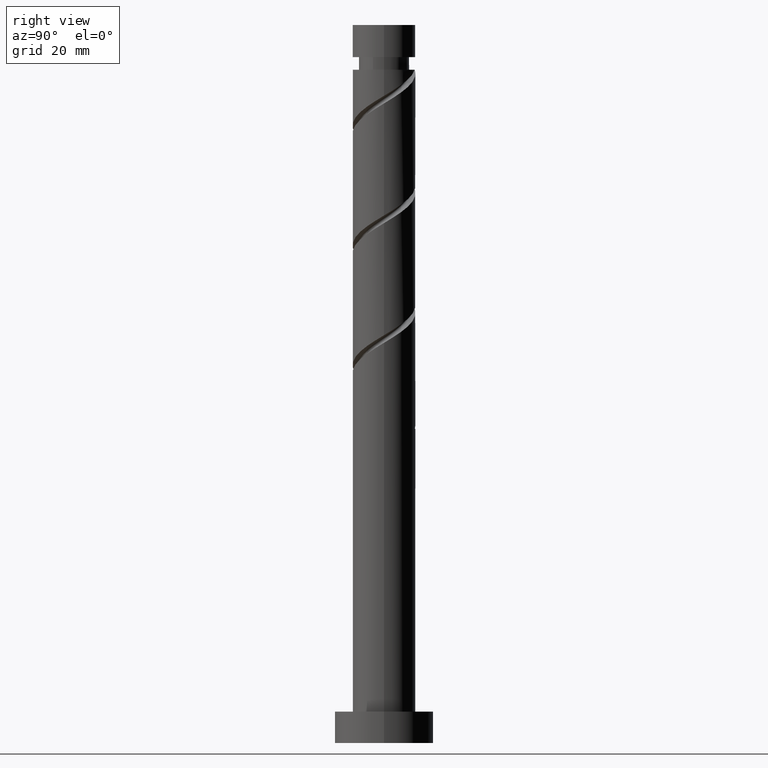
[diagram: clean part render]
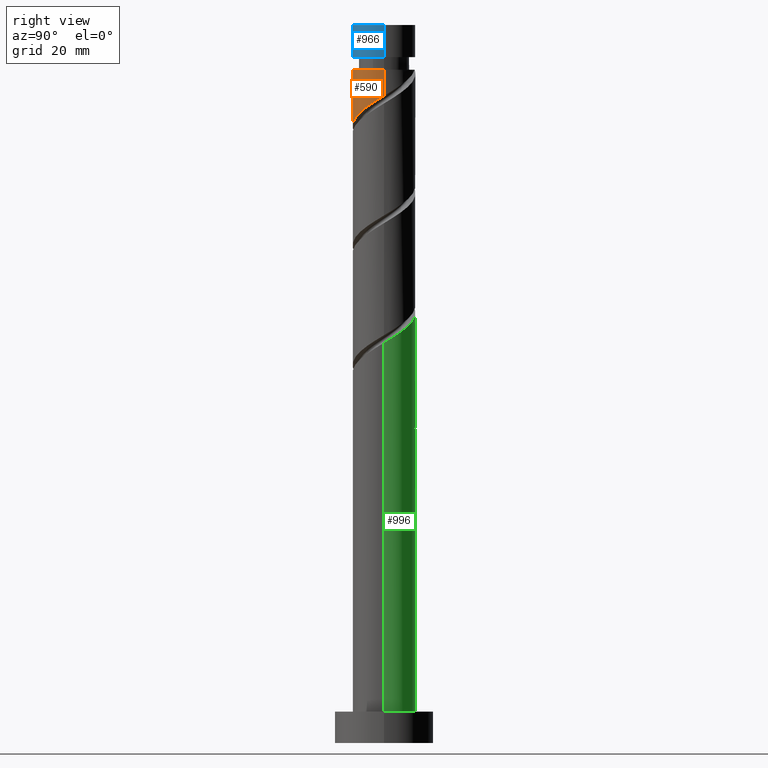
[diagram: same view with three faces highlighted in distinct colors, each labeled with its STEP entity id]
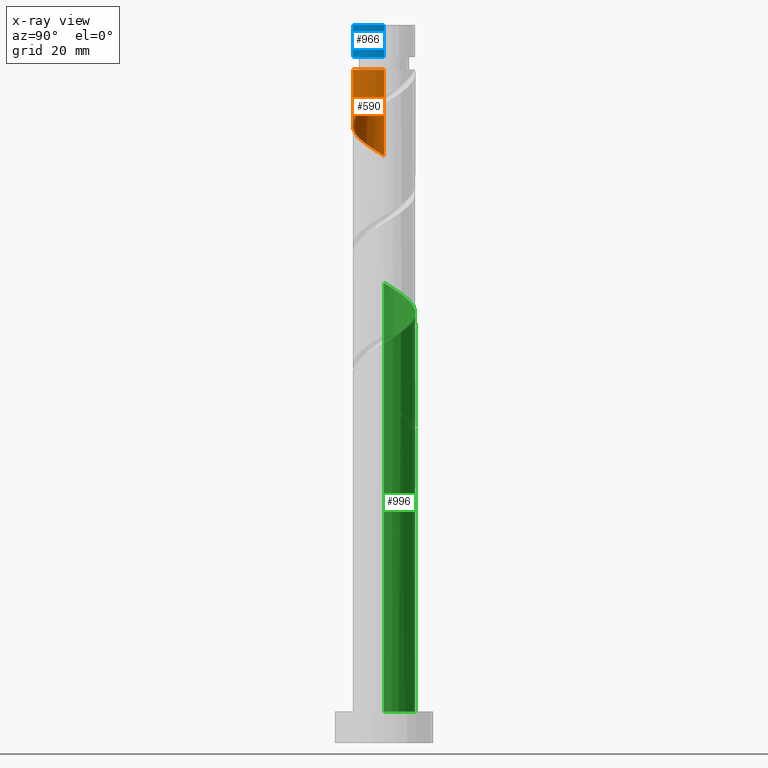
[diagram: x-ray of the same camera — body ghosted, the three highlighted faces saturated]
A machine part, right view with three faces highlighted in distinct colors.
The next image is the same camera in x-ray (body ghosted, the three faces saturated) — at least one of them is partly hidden behind the body in this view.
Their STEP definitions:

[orange] entity #590 — the highlighted cylindrical surface (edge-blend (fillet) strip) has radius 7 mm, axis along (-0, -0, -1).
#35 = CARTESIAN_POINT ( 'NONE',  ( -7.000000000000000000, -0.8017024916958609415, 131.3653860772203927 ) ) ;
#93 = EDGE_LOOP ( 'NONE', ( #125, #531, #216, #501 ) ) ;
#125 = ORIENTED_EDGE ( 'NONE', *, *, #1533, .F. ) ;
#138 = CARTESIAN_POINT ( 'NONE',  ( 5.069496247514097220, -4.930836185660769644, 140.9390625540390829 ) ) ;
#147 = VERTEX_POINT ( 'NONE', #1429 ) ;
#149 = CARTESIAN_POINT ( 'NONE',  ( -4.880647382969422132, -5.017896085324379918, 134.2723958873724825 ) ) ;
#157 = CARTESIAN_POINT ( 'NONE',  ( 7.000000000000000000, 1.346113863314689386E-15, 144.2127594575824503 ) ) ;
#159 = CARTESIAN_POINT ( 'NONE',  ( 6.253323115207287231, -3.302860534475439369, 142.1511837661603579 ) ) ;
#216 = ORIENTED_EDGE ( 'NONE', *, *, #477, .T. ) ;
#238 = AXIS2_PLACEMENT_3D ( 'NONE', #1134, #486, #744 ) ;
#258 = CARTESIAN_POINT ( 'NONE',  ( -5.602111921561416352, -4.316164931010002981, 133.6663352813118308 ) ) ;
#280 =( BOUNDED_CURVE ( )  B_SPLINE_CURVE ( 2, ( #471, #989, #397, #649, #659, #159, #533, #138, #1308, #1037, #1288, #1183, #380, #897, #1402, #1410, #1150, #1044, #149, #258, #1156, #1427, #767, #35, #1164 ),
 .UNSPECIFIED., .F., .T. ) 
 B_SPLINE_CURVE_WITH_KNOTS ( ( 3, 2, 2, 2, 2, 2, 2, 2, 2, 2, 2, 2, 3 ),
 ( 0.3045252162417512731, 0.3068181818181818232, 0.3181818181818181768, 0.3295454545454545303, 0.3409090909090908839, 0.3522727272727272929, 0.3636363636363636465, 0.3750000000000000000, 0.3863636363636363535, 0.3977272727272727071, 0.4090909090909091161, 0.4204545454545454697, 0.4295252162417513286 ),
 .UNSPECIFIED. ) 
 CURVE ( )  GEOMETRIC_REPRESENTATION_ITEM ( )  RATIONAL_B_SPLINE_CURVE ( ( 0.9061101570135522421, 0.9072237824201343503, 0.9090909090909118362, 0.8998376744372142966, 0.9090909090909118362, 0.8998376744372142966, 0.9090909090909118362, 0.8998376744372142966, 0.9090909090909118362, 0.8998376744372142966, 0.9090909090909118362, 0.8998376744372142966, 0.9090909090909118362, 0.8998376744372142966, 0.9090909090909118362, 0.8998376744372142966, 0.9090909090909118362, 0.8998376744372142966, 0.9090909090909118362, 0.8998376744372142966, 0.9090909090909118362, 0.8998376744372142966, 0.9090909090909118362, 0.9017048011079917824, 0.9061101570135522421 ) ) 
 REPRESENTATION_ITEM ( '' )  );
#284 = CARTESIAN_POINT ( 'NONE',  ( -7.000000000000000000, -2.841795933664344193E-15, 130.8794261242491075 ) ) ;
#380 = CARTESIAN_POINT ( 'NONE',  ( 0.5961285032983064669, -6.974570295549062493, 137.9087595237361086 ) ) ;
#397 = CARTESIAN_POINT ( 'NONE',  ( 6.988417157977289129, -0.4025240689556711660, 143.9693655843421425 ) ) ;
#461 = DIRECTION ( 'NONE',  ( -1.000000000000000000, 0.000000000000000000, 0.000000000000000000 ) ) ;
#471 = CARTESIAN_POINT ( 'NONE',  ( 7.000000000000000000, 1.346113863314689386E-15, 144.2127594575824503 ) ) ;
#477 = EDGE_CURVE ( 'NONE', #147, #1394, #604, .T. ) ;
#486 = DIRECTION ( 'NONE',  ( -0.000000000000000000, -0.000000000000000000, -1.000000000000000000 ) ) ;
#501 = ORIENTED_EDGE ( 'NONE', *, *, #668, .F. ) ;
#531 = ORIENTED_EDGE ( 'NONE', *, *, #635, .T. ) ;
#533 = CARTESIAN_POINT ( 'NONE',  ( 5.661409681360692225, -4.116848360068104284, 141.5451231600997630 ) ) ;
#590 = ADVANCED_FACE ( 'NONE', ( #752 ), #596, .T. ) ;
#596 = CYLINDRICAL_SURFACE ( 'NONE', #238, 7.000000000000000888 ) ;
#604 = LINE ( 'NONE', #1391, #995 ) ;
#634 = CIRCLE ( 'NONE', #1614, 6.999999999999995559 ) ;
#635 = EDGE_CURVE ( 'NONE', #1138, #147, #634, .T. ) ;
#649 = CARTESIAN_POINT ( 'NONE',  ( 6.930542934050928139, -1.407306765654844805, 143.3633049782815760 ) ) ;
#659 = CARTESIAN_POINT ( 'NONE',  ( 6.591933024629107685, -2.355083650065141754, 142.7572443722209812 ) ) ;
#668 = EDGE_CURVE ( 'NONE', #1130, #1394, #280, .T. ) ;
#737 = DIRECTION ( 'NONE',  ( -0.000000000000000000, -0.000000000000000000, -1.000000000000000000 ) ) ;
#744 = DIRECTION ( 'NONE',  ( -1.000000000000000000, 0.000000000000000000, 0.000000000000000000 ) ) ;
#752 = FACE_OUTER_BOUND ( 'NONE', #93, .T. ) ;
#767 = CARTESIAN_POINT ( 'NONE',  ( -6.818741294903301053, -1.582645618317776615, 131.8481534631300178 ) ) ;
#822 = DIRECTION ( 'NONE',  ( -0.000000000000000000, -0.000000000000000000, -1.000000000000000000 ) ) ;
#851 = CARTESIAN_POINT ( 'NONE',  ( 0.000000000000000000, 0.000000000000000000, 150.0299716449482048 ) ) ;
#897 = CARTESIAN_POINT ( 'NONE',  ( -0.4066633151437540894, -7.060280634755069507, 137.3026989176754284 ) ) ;
#989 = CARTESIAN_POINT ( 'NONE',  ( 7.000000000000001776, -0.2014286856667529269, 144.0906614528642251 ) ) ;
#995 = VECTOR ( 'NONE', #997, 1000.000000000000000 ) ;
#997 = DIRECTION ( 'NONE',  ( -0.000000000000000000, -0.000000000000000000, -1.000000000000000000 ) ) ;
#1026 = VECTOR ( 'NONE', #822, 1000.000000000000000 ) ;
#1037 = CARTESIAN_POINT ( 'NONE',  ( 3.474968943302383817, -6.159344813895797799, 139.7269413419178079 ) ) ;
#1044 = CARTESIAN_POINT ( 'NONE',  ( -4.159182844377426136, -5.719627239638754190, 134.8784564934330490 ) ) ;
#1099 = CARTESIAN_POINT ( 'NONE',  ( 7.000000000000000888, 8.572527594031474176E-16, 160.0000000000000000 ) ) ;
#1130 = VERTEX_POINT ( 'NONE', #157 ) ;
#1134 = CARTESIAN_POINT ( 'NONE',  ( 0.000000000000000000, 0.000000000000000000, 160.0000000000000000 ) ) ;
#1138 = VERTEX_POINT ( 'NONE', #1542 ) ;
#1150 = CARTESIAN_POINT ( 'NONE',  ( -3.269242176566107272, -6.189673302441841329, 135.4845170994936723 ) ) ;
#1156 = CARTESIAN_POINT ( 'NONE',  ( -6.096651564732185946, -3.439598769951026203, 133.0602746752512644 ) ) ;
#1164 = CARTESIAN_POINT ( 'NONE',  ( -7.000000000000000000, -2.841795933664344193E-15, 130.8794261242491075 ) ) ;
#1183 = CARTESIAN_POINT ( 'NONE',  ( 1.598920321740370243, -6.888859956343052815, 138.5148201297966466 ) ) ;
#1228 = LINE ( 'NONE', #1099, #1026 ) ;
#1288 = CARTESIAN_POINT ( 'NONE',  ( 2.536944632521377141, -6.524102385119427971, 139.1208807358573267 ) ) ;
#1308 = CARTESIAN_POINT ( 'NONE',  ( 4.272232595408238964, -5.545090499778284610, 140.3330019479784880 ) ) ;
#1391 = CARTESIAN_POINT ( 'NONE',  ( -7.000000000000000888, 0.000000000000000000, 160.0000000000000000 ) ) ;
#1394 = VERTEX_POINT ( 'NONE', #284 ) ;
#1402 = CARTESIAN_POINT ( 'NONE',  ( -1.392982411949270638, -6.860000000000000320, 136.6966383116148620 ) ) ;
#1410 = CARTESIAN_POINT ( 'NONE',  ( -2.379301508754786632, -6.659719365244929357, 136.0905777055542671 ) ) ;
#1427 = CARTESIAN_POINT ( 'NONE',  ( -6.591191207902951099, -2.563032608892048536, 132.4542140691906127 ) ) ;
#1429 = CARTESIAN_POINT ( 'NONE',  ( -6.999999999999995559, 0.000000000000000000, 150.0299716449482048 ) ) ;
#1533 = EDGE_CURVE ( 'NONE', #1138, #1130, #1228, .T. ) ;
#1542 = CARTESIAN_POINT ( 'NONE',  ( 6.999999999999995559, 8.572527594031471218E-16, 150.0299716449482048 ) ) ;
#1614 = AXIS2_PLACEMENT_3D ( 'NONE', #851, #737, #461 ) ;

[blue] entity #966 — the highlighted cylindrical surface (edge-blend (fillet) strip) has radius 7 mm, axis along (-0, -0, -1).
#154 = VECTOR ( 'NONE', #774, 1000.000000000000000 ) ;
#194 = VECTOR ( 'NONE', #523, 1000.000000000000000 ) ;
#213 = AXIS2_PLACEMENT_3D ( 'NONE', #547, #376, #1093 ) ;
#260 = EDGE_CURVE ( 'NONE', #922, #647, #1319, .T. ) ;
#265 = CARTESIAN_POINT ( 'NONE',  ( 7.000000000000000888, 8.572527594031474176E-16, 160.0000000000000000 ) ) ;
#283 = ORIENTED_EDGE ( 'NONE', *, *, #896, .F. ) ;
#301 = CARTESIAN_POINT ( 'NONE',  ( 6.999999999999994671, 8.572527594031471218E-16, 152.8299716449482162 ) ) ;
#338 = ORIENTED_EDGE ( 'NONE', *, *, #732, .T. ) ;
#342 = CYLINDRICAL_SURFACE ( 'NONE', #789, 7.000000000000000888 ) ;
#373 = LINE ( 'NONE', #265, #154 ) ;
#376 = DIRECTION ( 'NONE',  ( 0.000000000000000000, 0.000000000000000000, 1.000000000000000000 ) ) ;
#386 = VERTEX_POINT ( 'NONE', #974 ) ;
#443 = CARTESIAN_POINT ( 'NONE',  ( 0.000000000000000000, 0.000000000000000000, 152.8299716449482162 ) ) ;
#521 = ORIENTED_EDGE ( 'NONE', *, *, #1131, .F. ) ;
#523 = DIRECTION ( 'NONE',  ( -0.000000000000000000, -0.000000000000000000, -1.000000000000000000 ) ) ;
#545 = DIRECTION ( 'NONE',  ( -1.000000000000000000, 0.000000000000000000, 0.000000000000000000 ) ) ;
#547 = CARTESIAN_POINT ( 'NONE',  ( 0.000000000000000000, 0.000000000000000000, 160.0000000000000000 ) ) ;
#588 = CIRCLE ( 'NONE', #1036, 6.999999999999994671 ) ;
#610 = CARTESIAN_POINT ( 'NONE',  ( 0.000000000000000000, 0.000000000000000000, 160.0000000000000000 ) ) ;
#647 = VERTEX_POINT ( 'NONE', #1260 ) ;
#732 = EDGE_CURVE ( 'NONE', #922, #386, #1174, .T. ) ;
#774 = DIRECTION ( 'NONE',  ( -0.000000000000000000, -0.000000000000000000, -1.000000000000000000 ) ) ;
#789 = AXIS2_PLACEMENT_3D ( 'NONE', #610, #1132, #1369 ) ;
#877 = ORIENTED_EDGE ( 'NONE', *, *, #260, .F. ) ;
#883 = EDGE_LOOP ( 'NONE', ( #521, #877, #338, #283 ) ) ;
#896 = EDGE_CURVE ( 'NONE', #1314, #386, #588, .T. ) ;
#922 = VERTEX_POINT ( 'NONE', #1083 ) ;
#935 = DIRECTION ( 'NONE',  ( -0.000000000000000000, -0.000000000000000000, -1.000000000000000000 ) ) ;
#966 = ADVANCED_FACE ( 'NONE', ( #1493 ), #342, .T. ) ;
#974 = CARTESIAN_POINT ( 'NONE',  ( -6.999999999999994671, 0.000000000000000000, 152.8299716449482162 ) ) ;
#1036 = AXIS2_PLACEMENT_3D ( 'NONE', #443, #935, #545 ) ;
#1083 = CARTESIAN_POINT ( 'NONE',  ( -7.000000000000000888, 0.000000000000000000, 160.0000000000000000 ) ) ;
#1093 = DIRECTION ( 'NONE',  ( 1.000000000000000000, 0.000000000000000000, 0.000000000000000000 ) ) ;
#1131 = EDGE_CURVE ( 'NONE', #647, #1314, #373, .T. ) ;
#1132 = DIRECTION ( 'NONE',  ( -0.000000000000000000, -0.000000000000000000, -1.000000000000000000 ) ) ;
#1174 = LINE ( 'NONE', #1543, #194 ) ;
#1260 = CARTESIAN_POINT ( 'NONE',  ( 7.000000000000000888, 8.572527594031474176E-16, 160.0000000000000000 ) ) ;
#1314 = VERTEX_POINT ( 'NONE', #301 ) ;
#1319 = CIRCLE ( 'NONE', #213, 7.000000000000000888 ) ;
#1369 = DIRECTION ( 'NONE',  ( -1.000000000000000000, 0.000000000000000000, 0.000000000000000000 ) ) ;
#1493 = FACE_OUTER_BOUND ( 'NONE', #883, .T. ) ;
#1543 = CARTESIAN_POINT ( 'NONE',  ( -7.000000000000000888, 0.000000000000000000, 160.0000000000000000 ) ) ;

[green] entity #996 — the highlighted cylindrical surface (edge-blend (fillet) strip) has radius 7 mm, axis along (-0, -0, -1).
#1 = VERTEX_POINT ( 'NONE', #739 ) ;
#21 = AXIS2_PLACEMENT_3D ( 'NONE', #727, #210, #735 ) ;
#32 = ORIENTED_EDGE ( 'NONE', *, *, #954, .F. ) ;
#50 = CARTESIAN_POINT ( 'NONE',  ( -7.000000000000000000, 6.939964806422399820E-15, 77.54609279091576468 ) ) ;
#65 = DIRECTION ( 'NONE',  ( -0.000000000000000000, -0.000000000000000000, -1.000000000000000000 ) ) ;
#88 = CARTESIAN_POINT ( 'NONE',  ( -1.598920321740368911, 6.888859956343054591, 71.84815346313000362 ) ) ;
#108 = CARTESIAN_POINT ( 'NONE',  ( -6.930542934050928139, 1.407306765654844138, 76.69663831161486200 ) ) ;
#123 = CARTESIAN_POINT ( 'NONE',  ( -6.818741294903310823, 1.582645618317780833, 74.87845649343304899 ) ) ;
#164 = ORIENTED_EDGE ( 'NONE', *, *, #1216, .F. ) ;
#184 = CARTESIAN_POINT ( 'NONE',  ( -4.159182844377432353, 5.719627239638762184, 98.51482012979670344 ) ) ;
#191 = VERTEX_POINT ( 'NONE', #1057 ) ;
#210 = DIRECTION ( 'NONE',  ( -0.000000000000000000, -0.000000000000000000, -1.000000000000000000 ) ) ;
#212 = LINE ( 'NONE', #1621, #425 ) ;
#219 = CARTESIAN_POINT ( 'NONE',  ( -6.988417157977289129, 0.4025240689556701668, 77.30269891767549950 ) ) ;
#227 = CARTESIAN_POINT ( 'NONE',  ( -5.069496247514094556, 4.930836185660769644, 74.27239588737243992 ) ) ;
#228 = DIRECTION ( 'NONE',  ( -0.000000000000000000, -0.000000000000000000, -1.000000000000000000 ) ) ;
#230 = ORIENTED_EDGE ( 'NONE', *, *, #1273, .T. ) ;
#249 = CARTESIAN_POINT ( 'NONE',  ( 0.000000000000000000, 0.000000000000000000, 7.000000000000000000 ) ) ;
#269 = EDGE_CURVE ( 'NONE', #1573, #559, #707, .T. ) ;
#275 = CARTESIAN_POINT ( 'NONE',  ( 6.591933024629119231, 2.355083650065142198, 90.63603225100882810 ) ) ;
#285 = CARTESIAN_POINT ( 'NONE',  ( 5.069496247514106102, 4.930836185660772308, 92.45421406919062690 ) ) ;
#310 = CARTESIAN_POINT ( 'NONE',  ( -2.379301508754788852, 6.659719365244941791, 97.30269891767549950 ) ) ;
#317 = CARTESIAN_POINT ( 'NONE',  ( -6.591191207902958205, 2.563032608892054309, 100.9390625540391255 ) ) ;
#332 = CARTESIAN_POINT ( 'NONE',  ( -6.253323115207287231, 3.302860534475439369, 75.48451709949364385 ) ) ;
#341 =( BOUNDED_CURVE ( )  B_SPLINE_CURVE ( 2, ( #1251, #1378, #219, #108, #1003, #332, #980, #227, #1231, #986, #479, #88, #1484, #586, #1502 ),
 .UNSPECIFIED., .F., .T. ) 
 B_SPLINE_CURVE_WITH_KNOTS ( ( 3, 2, 2, 2, 2, 2, 2, 3 ),
 ( 0.9295252162417513286, 0.9318181818181817677, 0.9431818181818182323, 0.9545454545454545858, 0.9659090909090909394, 0.9772727272727272929, 0.9886363636363636465, 1.000000000000000000 ),
 .UNSPECIFIED. ) 
 CURVE ( )  GEOMETRIC_REPRESENTATION_ITEM ( )  RATIONAL_B_SPLINE_CURVE ( ( 0.9061101570135521310, 0.9072237824201343503, 0.9090909090909118362, 0.8998376744372142966, 0.9090909090909118362, 0.8998376744372142966, 0.9090909090909118362, 0.8998376744372142966, 0.9090909090909118362, 0.8998376744372142966, 0.9090909090909118362, 0.8998376744372142966, 0.9090909090909118362, 0.8998376744372142966, 0.9090909090909118362 ) ) 
 REPRESENTATION_ITEM ( '' )  );
#369 = CARTESIAN_POINT ( 'NONE',  ( -5.602111921561425234, 4.316164931010010086, 73.06027467525125019 ) ) ;
#402 = CIRCLE ( 'NONE', #864, 7.000000000000000888 ) ;
#415 = VERTEX_POINT ( 'NONE', #1478 ) ;
#425 = VECTOR ( 'NONE', #228, 1000.000000000000000 ) ;
#453 = CARTESIAN_POINT ( 'NONE',  ( 7.000000000000009770, 4.786182625118863513E-15, 89.18051716564733056 ) ) ;
#458 = CARTESIAN_POINT ( 'NONE',  ( -4.880647382969427461, 5.017896085324388800, 99.12088073585732673 ) ) ;
#479 = CARTESIAN_POINT ( 'NONE',  ( -2.536944632521377141, 6.524102385119427971, 72.45421406919065532 ) ) ;
#493 = CARTESIAN_POINT ( 'NONE',  ( -1.392982411949269084, 6.860000000000010978, 70.02997164494821902 ) ) ;
#544 = CARTESIAN_POINT ( 'NONE',  ( 4.272232595408246070, 5.545090499778293491, 93.06027467525123598 ) ) ;
#559 = VERTEX_POINT ( 'NONE', #724 ) ;
#560 = CARTESIAN_POINT ( 'NONE',  ( 0.000000000000000000, 0.000000000000000000, 70.02997164494821902 ) ) ;
#563 = CARTESIAN_POINT ( 'NONE',  ( 0.5961285032983110188, 6.974570295549072263, 95.48451709949371491 ) ) ;
#586 = CARTESIAN_POINT ( 'NONE',  ( 0.4066633151437522575, 7.060280634755066842, 70.63603225100881389 ) ) ;
#600 = EDGE_CURVE ( 'NONE', #1324, #1573, #1095, .T. ) ;
#609 = EDGE_CURVE ( 'NONE', #415, #1, #212, .T. ) ;
#676 = CARTESIAN_POINT ( 'NONE',  ( 1.598920321740373129, 6.888859956343062585, 94.87845649343306320 ) ) ;
#694 = CARTESIAN_POINT ( 'NONE',  ( -5.602111921561425234, 4.316164931010010086, 99.72694134191792159 ) ) ;
#707 = LINE ( 'NONE', #828, #1107 ) ;
#724 = CARTESIAN_POINT ( 'NONE',  ( -7.000000000000000888, 0.000000000000000000, 7.000000000000000000 ) ) ;
#726 = VERTEX_POINT ( 'NONE', #1017 ) ;
#727 = CARTESIAN_POINT ( 'NONE',  ( 0.000000000000000000, 0.000000000000000000, 160.0000000000000000 ) ) ;
#734 = CARTESIAN_POINT ( 'NONE',  ( -7.000000000000009770, -5.145146322002778474E-15, 75.84718383231400196 ) ) ;
#735 = DIRECTION ( 'NONE',  ( -1.000000000000000000, 0.000000000000000000, 0.000000000000000000 ) ) ;
#739 = CARTESIAN_POINT ( 'NONE',  ( 7.000000000000000888, 8.572527594031474176E-16, 7.000000000000000000 ) ) ;
#766 = DIRECTION ( 'NONE',  ( 0.000000000000000000, 0.000000000000000000, 1.000000000000000000 ) ) ;
#778 = CIRCLE ( 'NONE', #1298, 7.000000000000000888 ) ;
#828 = CARTESIAN_POINT ( 'NONE',  ( -7.000000000000000888, 0.000000000000000000, 160.0000000000000000 ) ) ;
#834 = CARTESIAN_POINT ( 'NONE',  ( -7.000000000000009770, -5.145146322002778474E-15, 102.5138504989806449 ) ) ;
#864 = AXIS2_PLACEMENT_3D ( 'NONE', #560, #1199, #1315 ) ;
#866 = CARTESIAN_POINT ( 'NONE',  ( -7.000000000000010658, 0.8017024916958563896, 75.36122387934267408 ) ) ;
#902 = ORIENTED_EDGE ( 'NONE', *, *, #1567, .F. ) ;
#933 = CARTESIAN_POINT ( 'NONE',  ( -1.392982411949268862, 6.860000000000010978, 70.02997164494821902 ) ) ;
#934 = CARTESIAN_POINT ( 'NONE',  ( 3.474968943302388702, 6.159344813895806681, 93.66633528131183084 ) ) ;
#954 = EDGE_CURVE ( 'NONE', #1508, #191, #341, .T. ) ;
#961 = CARTESIAN_POINT ( 'NONE',  ( -7.000000000000010658, 0.8017024916958636060, 102.0278905460093313 ) ) ;
#964 = CARTESIAN_POINT ( 'NONE',  ( 7.000000000000010658, 0.2014286856667568404, 89.30261517036554153 ) ) ;
#980 = CARTESIAN_POINT ( 'NONE',  ( -5.661409681360691337, 4.116848360068104284, 74.87845649343303478 ) ) ;
#986 = CARTESIAN_POINT ( 'NONE',  ( -3.474968943302384705, 6.159344813895797799, 73.06027467525125019 ) ) ;
#992 = ORIENTED_EDGE ( 'NONE', *, *, #269, .F. ) ;
#996 = ADVANCED_FACE ( 'NONE', ( #1139 ), #1618, .T. ) ;
#1003 = CARTESIAN_POINT ( 'NONE',  ( -6.591933024629107685, 2.355083650065140422, 76.09057770555426714 ) ) ;
#1011 = CARTESIAN_POINT ( 'NONE',  ( -4.159182844377432353, 5.719627239638762184, 71.84815346313003204 ) ) ;
#1017 = CARTESIAN_POINT ( 'NONE',  ( -7.000000000000009770, -5.145146322002778474E-15, 102.5138504989806449 ) ) ;
#1022 = ORIENTED_EDGE ( 'NONE', *, *, #1379, .T. ) ;
#1054 = CARTESIAN_POINT ( 'NONE',  ( 6.253323115207297889, 3.302860534475440257, 91.24209285706940875 ) ) ;
#1057 = CARTESIAN_POINT ( 'NONE',  ( 1.392982411949271304, 6.860000000000001208, 70.02997164494821902 ) ) ;
#1070 = ORIENTED_EDGE ( 'NONE', *, *, #609, .T. ) ;
#1095 =( BOUNDED_CURVE ( )  B_SPLINE_CURVE ( 2, ( #493, #1274, #1656, #1011, #1521, #369, #1396, #1505, #123, #866, #1384 ),
 .UNSPECIFIED., .F., .T. ) 
 B_SPLINE_CURVE_WITH_KNOTS ( ( 3, 2, 2, 2, 2, 3 ),
 ( 0.000000000000000000, 0.01136363636363635354, 0.02272727272727270709, 0.03409090909090906063, 0.04545454545454541417, 0.05452521624175135639 ),
 .UNSPECIFIED. ) 
 CURVE ( )  GEOMETRIC_REPRESENTATION_ITEM ( )  RATIONAL_B_SPLINE_CURVE ( ( 0.9090909090909178314, 0.8998376744372202918, 0.9090909090909178314, 0.8998376744372202918, 0.9090909090909178314, 0.8998376744372202918, 0.9090909090909178314, 0.8998376744372202918, 0.9090909090909178314, 0.9017048011079977776, 0.9061101570135581262 ) ) 
 REPRESENTATION_ITEM ( '' )  );
#1107 = VECTOR ( 'NONE', #65, 1000.000000000000000 ) ;
#1139 = FACE_OUTER_BOUND ( 'NONE', #1205, .T. ) ;
#1181 = DIRECTION ( 'NONE',  ( 1.000000000000000000, 0.000000000000000000, 0.000000000000000000 ) ) ;
#1199 = DIRECTION ( 'NONE',  ( 0.000000000000000000, -0.000000000000000000, -1.000000000000000000 ) ) ;
#1205 = EDGE_LOOP ( 'NONE', ( #902, #1070, #230, #992, #1498, #1022, #32, #164 ) ) ;
#1216 = EDGE_CURVE ( 'NONE', #726, #1508, #1287, .T. ) ;
#1217 = CARTESIAN_POINT ( 'NONE',  ( -6.096651564732193052, 3.439598769951032864, 100.3330019479785022 ) ) ;
#1230 = CARTESIAN_POINT ( 'NONE',  ( -1.392982411949268640, 6.860000000000010978, 96.69663831161490464 ) ) ;
#1231 = CARTESIAN_POINT ( 'NONE',  ( -4.272232595408239852, 5.545090499778283721, 73.66633528131185926 ) ) ;
#1241 = CARTESIAN_POINT ( 'NONE',  ( -0.4066633151437508698, 7.060280634755080165, 96.09057770555426714 ) ) ;
#1251 = CARTESIAN_POINT ( 'NONE',  ( -7.000000000000000000, 6.939964806422399820E-15, 77.54609279091576468 ) ) ;
#1273 = EDGE_CURVE ( 'NONE', #1, #559, #778, .T. ) ;
#1274 = CARTESIAN_POINT ( 'NONE',  ( -2.379301508754788852, 6.659719365244941791, 70.63603225100882810 ) ) ;
#1287 = LINE ( 'NONE', #1527, #1519 ) ;
#1298 = AXIS2_PLACEMENT_3D ( 'NONE', #249, #766, #1181 ) ;
#1315 = DIRECTION ( 'NONE',  ( -1.000000000000000000, 0.000000000000000000, 0.000000000000000000 ) ) ;
#1324 = VERTEX_POINT ( 'NONE', #933 ) ;
#1327 = CARTESIAN_POINT ( 'NONE',  ( 2.536944632521381582, 6.524102385119434189, 94.27239588737246834 ) ) ;
#1349 = CARTESIAN_POINT ( 'NONE',  ( -3.269242176566110381, 6.189673302441853764, 97.90875952373609437 ) ) ;
#1378 = CARTESIAN_POINT ( 'NONE',  ( -7.000000000000001776, 0.2014286856667613923, 77.42399478619758213 ) ) ;
#1379 = EDGE_CURVE ( 'NONE', #1324, #191, #402, .T. ) ;
#1384 = CARTESIAN_POINT ( 'NONE',  ( -7.000000000000008882, -5.145146322002779263E-15, 75.84718383231400196 ) ) ;
#1396 = CARTESIAN_POINT ( 'NONE',  ( -6.096651564732193052, 3.439598769951032864, 73.66633528131187347 ) ) ;
#1425 = DIRECTION ( 'NONE',  ( -0.000000000000000000, -0.000000000000000000, -1.000000000000000000 ) ) ;
#1435 = CARTESIAN_POINT ( 'NONE',  ( 5.661409681360701107, 4.116848360068107837, 91.84815346313003204 ) ) ;
#1478 = CARTESIAN_POINT ( 'NONE',  ( 7.000000000000009770, 4.786182625118863513E-15, 89.18051716564733056 ) ) ;
#1484 = CARTESIAN_POINT ( 'NONE',  ( -0.5961285032983083543, 6.974570295549062493, 71.24209285706942296 ) ) ;
#1495 = CARTESIAN_POINT ( 'NONE',  ( 6.930542934050940573, 1.407306765654843250, 90.02997164494823323 ) ) ;
#1498 = ORIENTED_EDGE ( 'NONE', *, *, #600, .F. ) ;
#1502 = CARTESIAN_POINT ( 'NONE',  ( 1.392982411949271304, 6.860000000000000320, 70.02997164494821902 ) ) ;
#1505 = CARTESIAN_POINT ( 'NONE',  ( -6.591191207902958205, 2.563032608892054309, 74.27239588737243992 ) ) ;
#1508 = VERTEX_POINT ( 'NONE', #50 ) ;
#1519 = VECTOR ( 'NONE', #1425, 1000.000000000000000 ) ;
#1521 = CARTESIAN_POINT ( 'NONE',  ( -4.880647382969427461, 5.017896085324388800, 72.45421406919065532 ) ) ;
#1527 = CARTESIAN_POINT ( 'NONE',  ( -7.000000000000000888, 0.000000000000000000, 160.0000000000000000 ) ) ;
#1567 = EDGE_CURVE ( 'NONE', #415, #726, #1616, .T. ) ;
#1573 = VERTEX_POINT ( 'NONE', #734 ) ;
#1601 = CARTESIAN_POINT ( 'NONE',  ( -6.818741294903310823, 1.582645618317780833, 101.5451231600997204 ) ) ;
#1616 =( BOUNDED_CURVE ( )  B_SPLINE_CURVE ( 2, ( #453, #964, #1631, #1495, #275, #1054, #1435, #285, #544, #934, #1327, #676, #563, #1241, #1230, #310, #1349, #184, #458, #694, #1217, #317, #1601, #961, #834 ),
 .UNSPECIFIED., .F., .T. ) 
 B_SPLINE_CURVE_WITH_KNOTS ( ( 3, 2, 2, 2, 2, 2, 2, 2, 2, 2, 2, 2, 3 ),
 ( 0.1795252162417513009, 0.1818181818181817677, 0.1931818181818182323, 0.2045454545454545858, 0.2159090909090909394, 0.2272727272727272929, 0.2386363636363636465, 0.2500000000000000000, 0.2613636363636363535, 0.2727272727272727071, 0.2840909090909090606, 0.2954545454545454142, 0.3045252162417512731 ),
 .UNSPECIFIED. ) 
 CURVE ( )  GEOMETRIC_REPRESENTATION_ITEM ( )  RATIONAL_B_SPLINE_CURVE ( ( 0.9061101570135582373, 0.9072237824201403456, 0.9090909090909178314, 0.8998376744372202918, 0.9090909090909178314, 0.8998376744372202918, 0.9090909090909178314, 0.8998376744372202918, 0.9090909090909178314, 0.8998376744372202918, 0.9090909090909178314, 0.8998376744372202918, 0.9090909090909178314, 0.8998376744372202918, 0.9090909090909178314, 0.8998376744372202918, 0.9090909090909178314, 0.8998376744372202918, 0.9090909090909178314, 0.8998376744372202918, 0.9090909090909178314, 0.8998376744372202918, 0.9090909090909178314, 0.9017048011079977776, 0.9061101570135582373 ) ) 
 REPRESENTATION_ITEM ( '' )  );
#1618 = CYLINDRICAL_SURFACE ( 'NONE', #21, 7.000000000000000888 ) ;
#1621 = CARTESIAN_POINT ( 'NONE',  ( 7.000000000000000888, 8.572527594031474176E-16, 160.0000000000000000 ) ) ;
#1631 = CARTESIAN_POINT ( 'NONE',  ( 6.988417157977300675, 0.4025240689556681684, 89.42391103888760995 ) ) ;
#1656 = CARTESIAN_POINT ( 'NONE',  ( -3.269242176566110381, 6.189673302441853764, 71.24209285706942296 ) ) ;